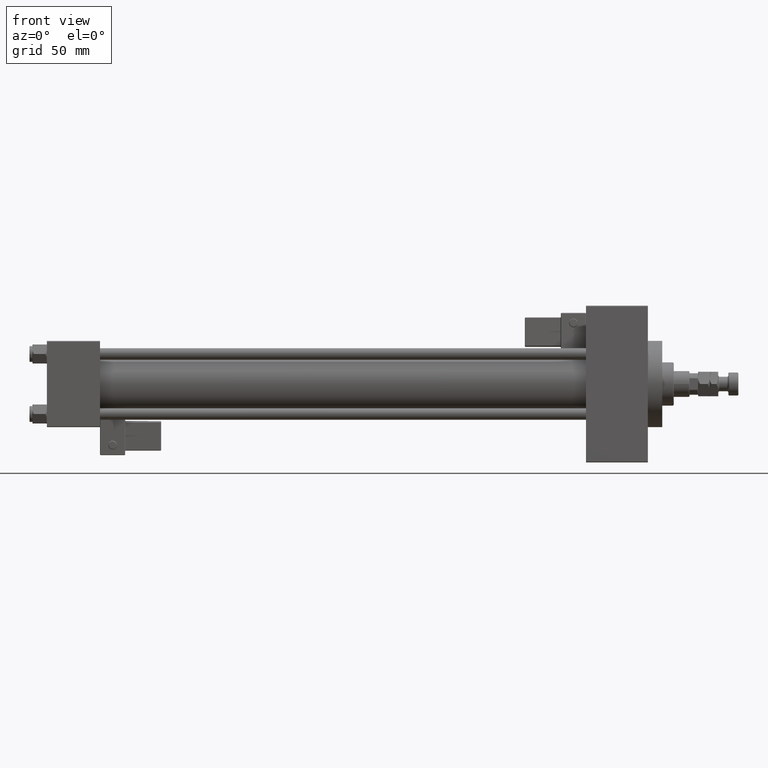
[diagram: clean part render]
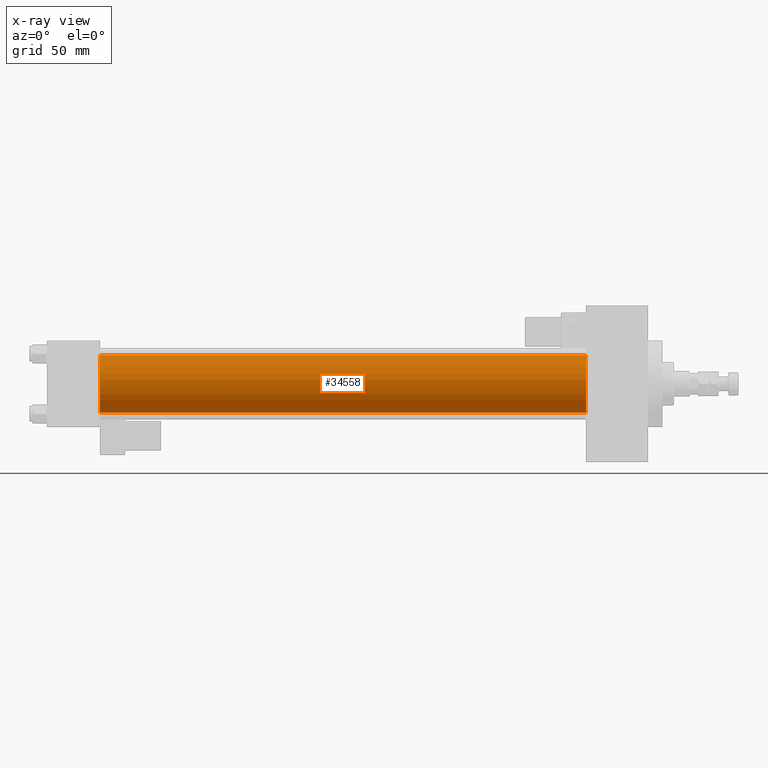
[diagram: x-ray — body ghosted, one internal face saturated and labeled with its STEP entity id]
A machine part, front view, then the same camera in x-ray: the body is ghosted and one INTERNAL B-rep face — a face not visible from any outside direction — is saturated and labeled: STEP entity #34558.
In plain terms, the highlighted cylindrical surface (edge-blend (fillet) strip) has radius 20 mm, axis along (-1, -0, -0).
Its self-contained STEP definition (entity closure, byte-faithful):
#762 = ORIENTED_EDGE ( 'NONE', *, *, #36909, .F. ) ;
#1775 = EDGE_LOOP ( 'NONE', ( #36017, #28552, #762, #37054 ) ) ;
#2223 = CARTESIAN_POINT ( 'NONE',  ( 375.0000000000000000, -1.527916156705042519E-16, -20.00000000000000000 ) ) ;
#4461 = CARTESIAN_POINT ( 'NONE',  ( 37.00000000000000000, -1.527916156705042519E-16, -20.00000000000000000 ) ) ;
#4843 = DIRECTION ( 'NONE',  ( -1.000000000000000000, -0.000000000000000000, -0.000000000000000000 ) ) ;
#5137 = EDGE_CURVE ( 'NONE', #30820, #14498, #47099, .T. ) ;
#5370 = CYLINDRICAL_SURFACE ( 'NONE', #12086, 20.00000000000000000 ) ;
#7252 = CIRCLE ( 'NONE', #15538, 20.00000000000000000 ) ;
#8486 = DIRECTION ( 'NONE',  ( 0.000000000000000000, 0.000000000000000000, -1.000000000000000000 ) ) ;
#8491 = VERTEX_POINT ( 'NONE', #4461 ) ;
#9518 = CARTESIAN_POINT ( 'NONE',  ( 375.0000000000000000, -2.602085213965210642E-15, 0.000000000000000000 ) ) ;
#12086 = AXIS2_PLACEMENT_3D ( 'NONE', #9518, #4843, #16536 ) ;
#12667 = VERTEX_POINT ( 'NONE', #29517 ) ;
#13507 = DIRECTION ( 'NONE',  ( 1.000000000000000000, 0.000000000000000000, 0.000000000000000000 ) ) ;
#14498 = VERTEX_POINT ( 'NONE', #26080 ) ;
#15538 = AXIS2_PLACEMENT_3D ( 'NONE', #21287, #13507, #25174 ) ;
#16536 = DIRECTION ( 'NONE',  ( 0.000000000000000000, 0.000000000000000000, 1.000000000000000000 ) ) ;
#17095 = DIRECTION ( 'NONE',  ( -1.000000000000000000, -0.000000000000000000, -0.000000000000000000 ) ) ;
#20426 = FACE_OUTER_BOUND ( 'NONE', #1775, .T. ) ;
#21287 = CARTESIAN_POINT ( 'NONE',  ( 37.00000000000000000, -2.602085213965210642E-15, 0.000000000000000000 ) ) ;
#23082 = AXIS2_PLACEMENT_3D ( 'NONE', #38647, #34746, #8486 ) ;
#24542 = EDGE_CURVE ( 'NONE', #14498, #8491, #40884, .T. ) ;
#25174 = DIRECTION ( 'NONE',  ( 0.000000000000000000, 0.000000000000000000, -1.000000000000000000 ) ) ;
#26001 = EDGE_CURVE ( 'NONE', #30820, #12667, #37334, .T. ) ;
#26080 = CARTESIAN_POINT ( 'NONE',  ( 375.0000000000000000, -1.527916156705042519E-16, -20.00000000000000000 ) ) ;
#28552 = ORIENTED_EDGE ( 'NONE', *, *, #24542, .T. ) ;
#29517 = CARTESIAN_POINT ( 'NONE',  ( 37.00000000000000000, -2.602085213965210642E-15, 20.00000000000000000 ) ) ;
#30820 = VERTEX_POINT ( 'NONE', #45413 ) ;
#34470 = VECTOR ( 'NONE', #37765, 1000.000000000000000 ) ;
#34558 = ADVANCED_FACE ( 'NONE', ( #20426 ), #5370, .F. ) ;
#34746 = DIRECTION ( 'NONE',  ( 1.000000000000000000, 0.000000000000000000, 0.000000000000000000 ) ) ;
#36017 = ORIENTED_EDGE ( 'NONE', *, *, #5137, .T. ) ;
#36909 = EDGE_CURVE ( 'NONE', #12667, #8491, #7252, .T. ) ;
#37054 = ORIENTED_EDGE ( 'NONE', *, *, #26001, .F. ) ;
#37334 = LINE ( 'NONE', #48738, #46084 ) ;
#37765 = DIRECTION ( 'NONE',  ( -1.000000000000000000, -0.000000000000000000, -0.000000000000000000 ) ) ;
#38647 = CARTESIAN_POINT ( 'NONE',  ( 375.0000000000000000, -2.602085213965210642E-15, 0.000000000000000000 ) ) ;
#40884 = LINE ( 'NONE', #2223, #34470 ) ;
#45413 = CARTESIAN_POINT ( 'NONE',  ( 375.0000000000000000, -2.602085213965210642E-15, 20.00000000000000000 ) ) ;
#46084 = VECTOR ( 'NONE', #17095, 1000.000000000000000 ) ;
#47099 = CIRCLE ( 'NONE', #23082, 20.00000000000000000 ) ;
#48738 = CARTESIAN_POINT ( 'NONE',  ( 375.0000000000000000, -2.602085213965210642E-15, 20.00000000000000000 ) ) ;